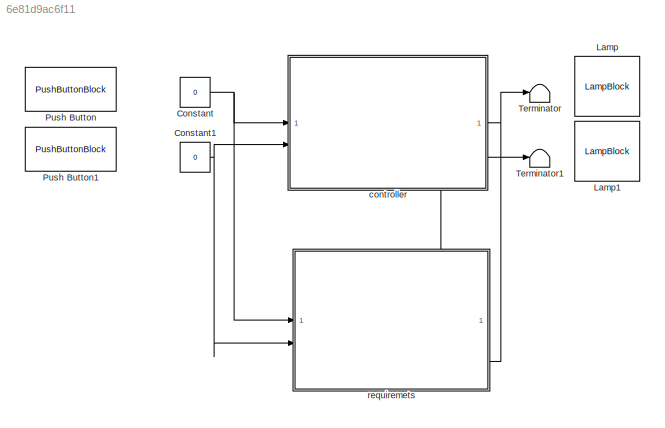
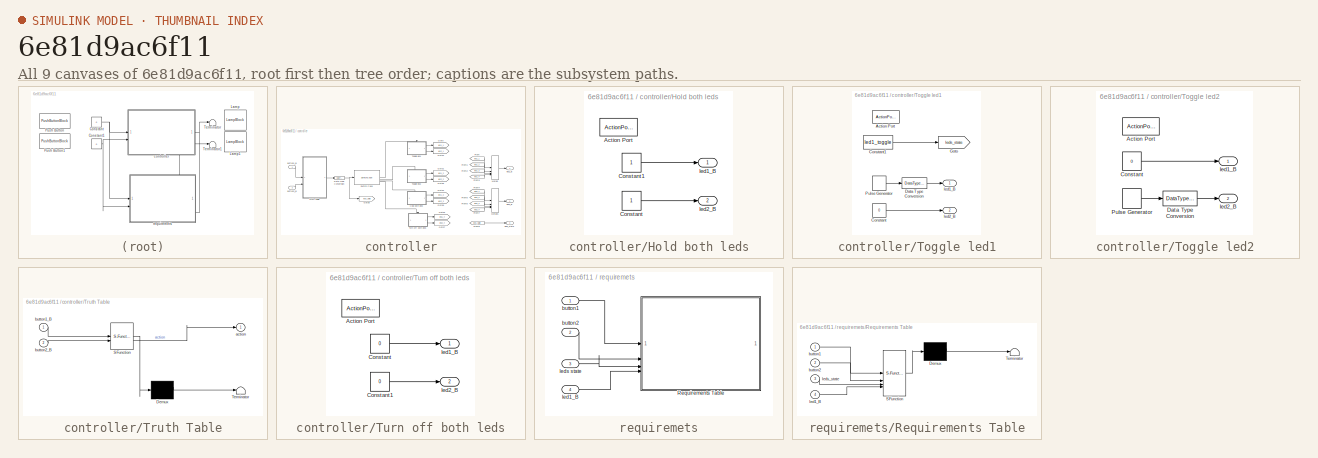
[diagram: thumbnail index - all 9 canvases of the model, root first then tree order]
MODEL slx_6e81d9ac6f11
KIND model
CONFIG AbsTol = auto
CONFIG EnableMultiTasking = off
CONFIG FixedStep = 0.01
CONFIG MaxStep = auto
CONFIG MinStep = auto
CONFIG RelTol = 1e-3
CONFIG SampleTimeConstraint = Unconstrained
CONFIG SolverName = FixedStepDiscrete
CONFIG StartTime = 0.0
CONFIG StopTime = inf
WORKSPACE source: mxarray member
WORKSPACE led1_toggle: Simulink.Parameter (value not decoded)
WORKSPACE led2_toggle: Simulink.Parameter (value not decoded)
WORKSPACE leds_off: Simulink.Parameter (value not decoded)
WORKSPACE leds_on: Simulink.Parameter (value not decoded)
BLOCK [Constant] Constant
  OutDataTypeStr = boolean
  Value = 0
BLOCK [Constant] Constant1
  OutDataTypeStr = boolean
  Value = 0
BLOCK [LampBlock] Lamp
  LabelPosition = Hide
BLOCK [LampBlock] Lamp1
  LabelPosition = Hide
BLOCK [PushButtonBlock] Push Button
  ButtonType = Latch
  OffValue = 0.000000
BLOCK [PushButtonBlock] Push Button1
  ButtonType = Latch
  OffValue = 0.000000
BLOCK [Terminator] Terminator
BLOCK [Terminator] Terminator1
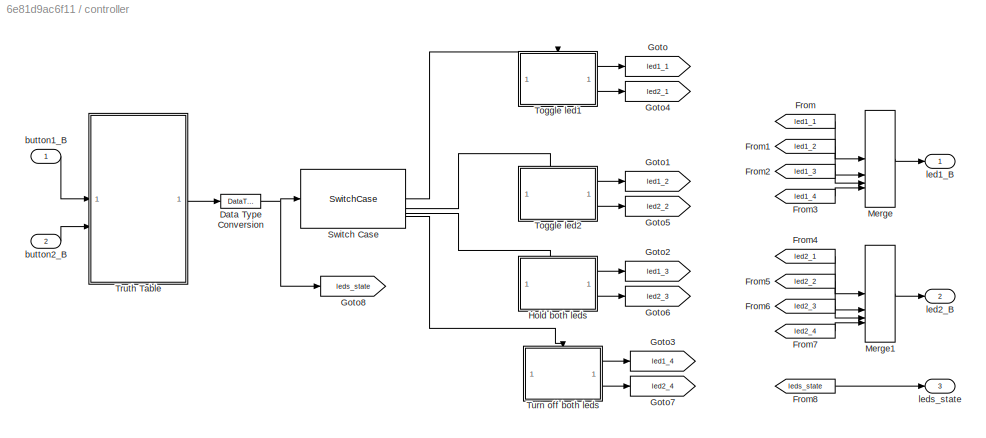
BLOCK [SubSystem] controller
  PortSchema = {"entries":[{"content":{"sides":[{"content":{"connectorIds":["In1","In2"]},"type":"ConnectorPlacement.EquallySpacedRectSide","uuid":"85f296a8-d7b2-4958-8c3f-8f9af51f5ae9"},{"content":{"connectorIds":["Out1","Out2"],"side":"RIGHT"},"type":"ConnectorPlacement.EquallySpacedRectSide","uuid":"f19bd88d-1c2c-44ef-9e20-18e02636a150"},{"content":{"connectorIds":[],"side":"TOP"},"type":"ConnectorPlacement.E...<+403ch>
  RTWFcnNameOpts = Use subsystem name
  RTWSystemCode = Reusable function
  TreatAsAtomicUnit = on
BLOCK [DataTypeConversion] controller/Data Type Conversion
  NameLocation = top
  OutDataTypeStr = int8
  RndMeth = Floor
  SaturateOnIntegerOverflow = off
BLOCK [From] controller/From
  GotoTag = led1_1
BLOCK [From] controller/From1
  GotoTag = led1_2
BLOCK [From] controller/From2
  GotoTag = led1_3
BLOCK [From] controller/From3
  GotoTag = led1_4
BLOCK [From] controller/From4
  GotoTag = led2_1
BLOCK [From] controller/From5
  GotoTag = led2_2
BLOCK [From] controller/From6
  GotoTag = led2_3
BLOCK [From] controller/From7
  GotoTag = led2_4
BLOCK [From] controller/From8
  GotoTag = leds_state
BLOCK [Goto] controller/Goto
  GotoTag = led1_1
BLOCK [Goto] controller/Goto1
  GotoTag = led1_2
BLOCK [Goto] controller/Goto2
  GotoTag = led1_3
BLOCK [Goto] controller/Goto3
  GotoTag = led1_4
BLOCK [Goto] controller/Goto4
  GotoTag = led2_1
BLOCK [Goto] controller/Goto5
  GotoTag = led2_2
BLOCK [Goto] controller/Goto6
  GotoTag = led2_3
BLOCK [Goto] controller/Goto7
  GotoTag = led2_4
BLOCK [Goto] controller/Goto8
  GotoTag = leds_state
BLOCK [SubSystem] controller/Hold both leds
  TreatAsAtomicUnit = on
BLOCK [ActionPort] controller/Hold both leds/Action Port
BLOCK [Constant] controller/Hold both leds/Constant
  OutDataTypeStr = boolean
BLOCK [Constant] controller/Hold both leds/Constant1
  OutDataTypeStr = boolean
BLOCK [Outport] controller/Hold both leds/led1_B
  OutDataTypeStr = boolean
BLOCK [Outport] controller/Hold both leds/led2_B
  OutDataTypeStr = boolean
  Port = 2
BLOCK [Merge] controller/Merge
  Inputs = 4
BLOCK [Merge] controller/Merge1
  Inputs = 4
BLOCK [SwitchCase] controller/Switch Case
  CaseConditions = {1,2,3,4}
  ShowDefaultCase = off
BLOCK [SubSystem] controller/Toggle led1
  TreatAsAtomicUnit = on
BLOCK [ActionPort] controller/Toggle led1/Action Port
BLOCK [Constant] controller/Toggle led1/Constant
  OutDataTypeStr = boolean
  Value = 0
BLOCK [Constant] controller/Toggle led1/Constant1
  OutDataTypeStr = int8
  Value = led1_toggle
BLOCK [DataTypeConversion] controller/Toggle led1/Data Type Conversion
  OutDataTypeStr = boolean
  RndMeth = Floor
  SaturateOnIntegerOverflow = off
BLOCK [Goto] controller/Toggle led1/Goto
  GotoTag = leds_state
  TagVisibility = global
BLOCK [DiscretePulseGenerator] controller/Toggle led1/Pulse Generator
  Period = 0.5
  PulseType = Time based
  PulseWidth = 50
BLOCK [Outport] controller/Toggle led1/led1_B
  OutDataTypeStr = boolean
BLOCK [Outport] controller/Toggle led1/led2_B
  OutDataTypeStr = boolean
  Port = 2
BLOCK [SubSystem] controller/Toggle led2
  TreatAsAtomicUnit = on
BLOCK [ActionPort] controller/Toggle led2/Action Port
BLOCK [Constant] controller/Toggle led2/Constant
  OutDataTypeStr = boolean
  Value = 0
BLOCK [DataTypeConversion] controller/Toggle led2/Data Type Conversion
  OutDataTypeStr = boolean
  RndMeth = Floor
  SaturateOnIntegerOverflow = off
BLOCK [DiscretePulseGenerator] controller/Toggle led2/Pulse Generator
  Period = 0.5
  PulseType = Time based
  PulseWidth = 50
BLOCK [Outport] controller/Toggle led2/led1_B
  OutDataTypeStr = boolean
BLOCK [Outport] controller/Toggle led2/led2_B
  OutDataTypeStr = boolean
  Port = 2
BLOCK [SubSystem] controller/Truth Table
  ErrorFcn = Stateflow.Translate.translate
  PermitHierarchicalResolution = ExplicitOnly
  SFBlockType = Truth Table
  TreatAsAtomicUnit = on
BLOCK [Demux] controller/Truth Table/ Demux 
  Outputs = 1
BLOCK [S-Function] controller/Truth Table/ SFunction 
  EnableBusSupport = on
  FunctionName = sf_sfun
  PortCounts = [2 2]
  SFcnIsStateOwnerBlock = off
  SFunctionDeploymentMode = off
  Tag = Stateflow S-Function 2
BLOCK [Terminator] controller/Truth Table/ Terminator 
BLOCK [Outport] controller/Truth Table/action
BLOCK [Inport] controller/Truth Table/button1_B
BLOCK [Inport] controller/Truth Table/button2_B
  Port = 2
BLOCK [SubSystem] controller/Turn off both leds
  TreatAsAtomicUnit = on
BLOCK [ActionPort] controller/Turn off both leds/Action Port
BLOCK [Constant] controller/Turn off both leds/Constant
  OutDataTypeStr = boolean
  Value = 0
BLOCK [Constant] controller/Turn off both leds/Constant1
  OutDataTypeStr = boolean
  Value = 0
BLOCK [Outport] controller/Turn off both leds/led1_B
  OutDataTypeStr = boolean
BLOCK [Outport] controller/Turn off both leds/led2_B
  OutDataTypeStr = boolean
  Port = 2
BLOCK [Inport] controller/button1_B
  OutDataTypeStr = boolean
BLOCK [Inport] controller/button2_B
  OutDataTypeStr = boolean
  Port = 2
BLOCK [Outport] controller/led1_B
  OutDataTypeStr = boolean
BLOCK [Outport] controller/led2_B
  OutDataTypeStr = boolean
  Port = 2
BLOCK [Outport] controller/leds_state
  OutDataTypeStr = int8
  Port = 3
BLOCK [SubSystem] requiremets
  PortSchema = {"entries":[{"content":{"sides":[{"content":{"connectorIds":["In1","In2"]},"type":"ConnectorPlacement.EquallySpacedRectSide","uuid":"7c10ba3e-1223-4a18-a288-42dbb977d165"},{"content":{"connectorIds":[],"side":"RIGHT"},"type":"ConnectorPlacement.EquallySpacedRectSide","uuid":"f1a1f911-1aec-4b83-9624-888bf9c4d1f9"},{"content":{"connectorIds":["In3","In4"],"side":"TOP"},"type":"ConnectorPlacement.Equ...<+251ch>
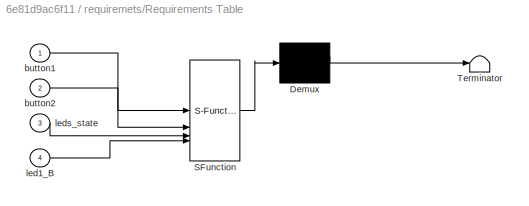
BLOCK [SubSystem] requiremets/Requirements Table
  ErrorFcn = Stateflow.Translate.translate
  PermitHierarchicalResolution = ExplicitOnly
  SFBlockType = Requirements Table
  TreatAsAtomicUnit = on
BLOCK [Demux] requiremets/Requirements Table/ Demux 
  Outputs = 1
BLOCK [S-Function] requiremets/Requirements Table/ SFunction 
  EnableBusSupport = on
  FunctionName = sf_sfun
  PortCounts = [4 1]
  SFcnIsStateOwnerBlock = off
  SFunctionDeploymentMode = off
  Tag = Stateflow S-Function 3
BLOCK [Terminator] requiremets/Requirements Table/ Terminator 
BLOCK [Inport] requiremets/Requirements Table/button1
BLOCK [Inport] requiremets/Requirements Table/button2
  Port = 2
BLOCK [Inport] requiremets/Requirements Table/led1_B
  Port = 4
BLOCK [Inport] requiremets/Requirements Table/leds_state
  Port = 3
BLOCK [Inport] requiremets/button1
  OutDataTypeStr = boolean
BLOCK [Inport] requiremets/button2
  OutDataTypeStr = boolean
  Port = 2
BLOCK [Inport] requiremets/led1_B
  Port = 4
BLOCK [Inport] requiremets/leds state
  Port = 3
NET Constant1:1 -> controller:2, requiremets:2
NET Constant:1 -> controller:1, requiremets:1
NET controller/Data Type Conversion:1 -> controller/Goto8:1, controller/Switch Case:1
LINE controller/From1:1 -> controller/Merge:2
LINE controller/From2:1 -> controller/Merge:3
LINE controller/From3:1 -> controller/Merge:4
LINE controller/From4:1 -> controller/Merge1:1
LINE controller/From5:1 -> controller/Merge1:2
LINE controller/From6:1 -> controller/Merge1:3
LINE controller/From7:1 -> controller/Merge1:4
LINE controller/From8:1 -> controller/leds_state:1
LINE controller/From:1 -> controller/Merge:1
LINE controller/Hold both leds/Constant1:1 -> controller/Hold both leds/led1_B:1
LINE controller/Hold both leds/Constant:1 -> controller/Hold both leds/led2_B:1
LINE controller/Hold both leds:1 -> controller/Goto2:1
LINE controller/Hold both leds:2 -> controller/Goto6:1
LINE controller/Merge1:1 -> controller/led2_B:1
LINE controller/Merge:1 -> controller/led1_B:1
LINE controller/Switch Case:1 -> controller/Toggle led1:ifaction
LINE controller/Switch Case:2 -> controller/Toggle led2:ifaction
LINE controller/Switch Case:3 -> controller/Hold both leds:ifaction
LINE controller/Switch Case:4 -> controller/Turn off both leds:ifaction
LINE controller/Toggle led1/Constant1:1 -> controller/Toggle led1/Goto:1
LINE controller/Toggle led1/Constant:1 -> controller/Toggle led1/led2_B:1
LINE controller/Toggle led1/Data Type Conversion:1 -> controller/Toggle led1/led1_B:1
LINE controller/Toggle led1/Pulse Generator:1 -> controller/Toggle led1/Data Type Conversion:1
LINE controller/Toggle led1:1 -> controller/Goto:1
LINE controller/Toggle led1:2 -> controller/Goto4:1
LINE controller/Toggle led2/Constant:1 -> controller/Toggle led2/led1_B:1
LINE controller/Toggle led2/Data Type Conversion:1 -> controller/Toggle led2/led2_B:1
LINE controller/Toggle led2/Pulse Generator:1 -> controller/Toggle led2/Data Type Conversion:1
LINE controller/Toggle led2:1 -> controller/Goto1:1
LINE controller/Toggle led2:2 -> controller/Goto5:1
LINE controller/Truth Table:1 -> controller/Data Type Conversion:1
LINE controller/Turn off both leds/Constant1:1 -> controller/Turn off both leds/led2_B:1
LINE controller/Turn off both leds/Constant:1 -> controller/Turn off both leds/led1_B:1
LINE controller/Turn off both leds:1 -> controller/Goto3:1
LINE controller/Turn off both leds:2 -> controller/Goto7:1
LINE controller/button1_B:1 -> controller/Truth Table:1
LINE controller/button2_B:1 -> controller/Truth Table:2
NET controller:1 -> Terminator:1, requiremets:4
LINE controller:2 -> Terminator1:1
LINE controller:3 -> requiremets:3
LINE requiremets/button1:1 -> requiremets/Requirements Table:1
LINE requiremets/button2:1 -> requiremets/Requirements Table:2
LINE requiremets/led1_B:1 -> requiremets/Requirements Table:4
LINE requiremets/leds state:1 -> requiremets/Requirements Table:3
note: NET lines group one-source signal fan-out (src -> all destinations, sorted); 1:1 wires keep LINE
CHART Test Sequence states=6 transitions=8
  STATE_LABEL 'Run\n\n%% Initialize data outputs.\nbutton1_B = false;\nbutton2_B = false;'
  STATE_LABEL 'step_1\nbutton1_B = true;\nbutton2_B = false;'
  STATE_LABEL 'step_2\nbutton1_B = false;\nbutton2_B = true;'
  STATE_LABEL 'step_3\nbutton2_B = true;\nbutton1_B = true;'
  STATE_LABEL 'step_4\nbutton1_B = false;\nbutton2_B = false;'
  STATE_LABEL 'end\nbutton1_B = false;\nbutton2_B = false;'
CHART controller/Truth Table states=1 transitions=1
  STATE_LABEL 'tt_blk_kernel'
  STATE_LABEL 'SCRIPT:\nfunction action = fcn(button1_B, button2_B)\n\naVarTruthTableCondition_1 = false;\naVarTruthTableCondition_2 = false;\naVarTruthTableCondition_3 = false;\naVarTruthTableCondition_4 = false;\n\n\n% Button1 is pressed\n\naVarTruthTableCondition_1 = logical(button1_B == true && button2_B == false);\n\n% Button2 is pressed\n\naVarTruthTableCondition_2 = logical(button2_B == true && button1_B == false);\n\n% B...<+1131ch>'
CHART requiremets/Requirements Table states=0 transitions=48
CHART  states=0 transitions=0
CHART  states=0 transitions=0
